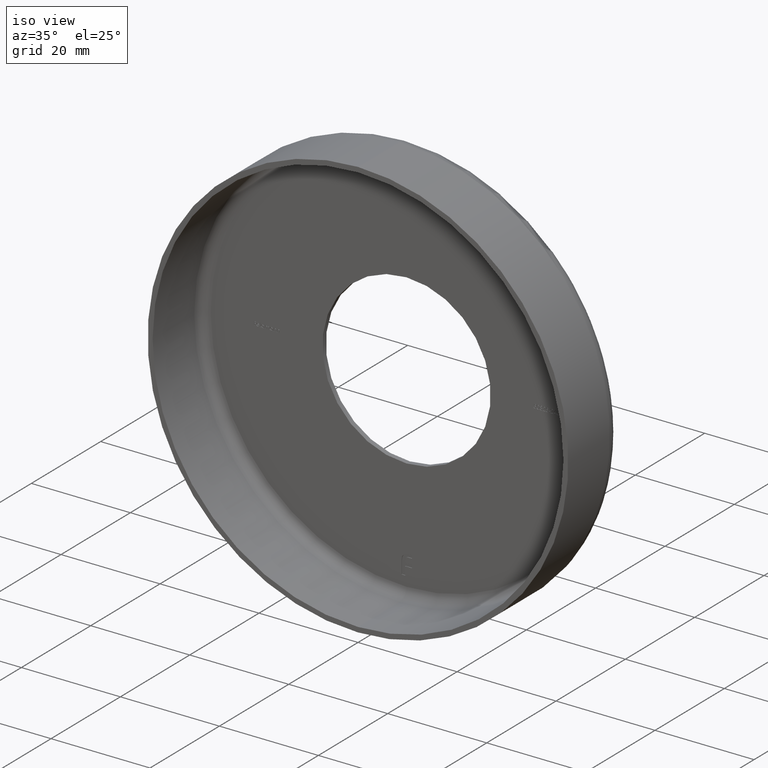
[diagram: clean part render]
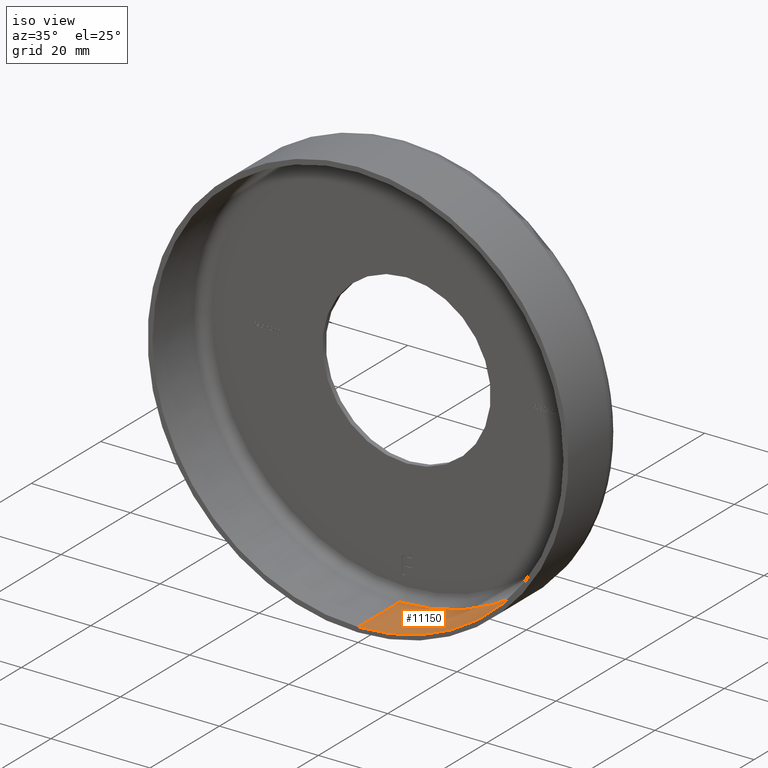
[diagram: same view with one face highlighted and labeled with its STEP entity id]
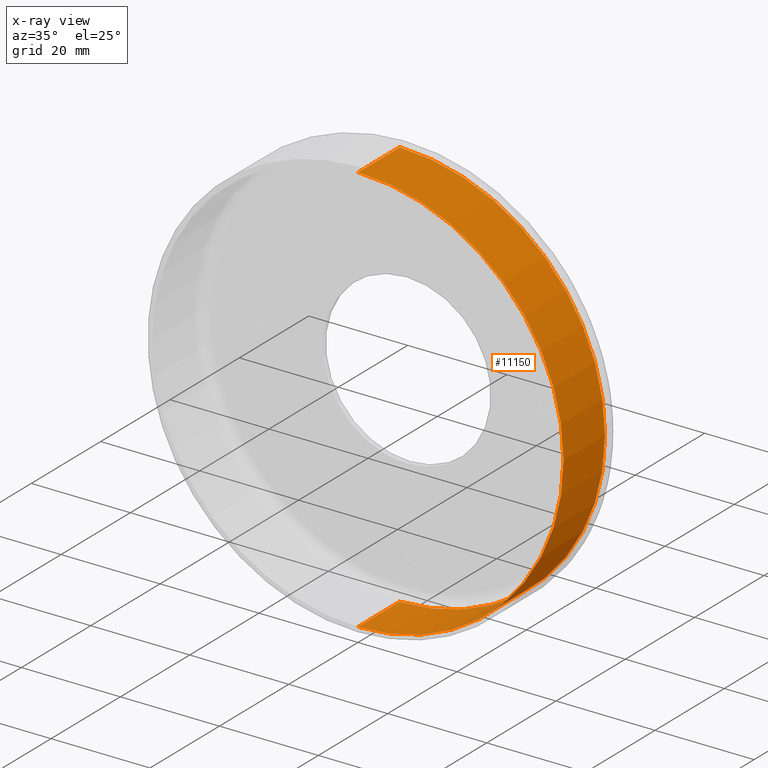
[diagram: x-ray of the same camera — body ghosted, the highlighted face saturated]
A machine part, iso view. The second image highlights one B-rep face of the part: STEP entity #11150.
The next image is the same camera in x-ray: the body ghosted, the highlighted face saturated — about 0% of this face is hidden behind the body in this view.
In plain terms, the highlighted cylindrical surface (partial cylindrical patch) has radius 41.5 mm, axis along (-0, -1, -0).
Its self-contained STEP definition (entity closure, byte-faithful):
#386 = CARTESIAN_POINT ( 'NONE',  ( 0.000000000000000000, 12.00000000000000000, 0.000000000000000000 ) ) ;
#426 = ORIENTED_EDGE ( 'NONE', *, *, #5648, .T. ) ;
#452 = CARTESIAN_POINT ( 'NONE',  ( 5.082284216461516537E-15, 0.000000000000000000, 41.50000000000000711 ) ) ;
#1738 = CYLINDRICAL_SURFACE ( 'NONE', #13786, 41.50000000000000711 ) ;
#1741 = EDGE_CURVE ( 'NONE', #13581, #5268, #7020, .T. ) ;
#1742 = DIRECTION ( 'NONE',  ( -0.000000000000000000, -1.000000000000000000, -0.000000000000000000 ) ) ;
#2593 = AXIS2_PLACEMENT_3D ( 'NONE', #6913, #1742, #5710 ) ;
#2931 = DIRECTION ( 'NONE',  ( -0.000000000000000000, -1.000000000000000000, -0.000000000000000000 ) ) ;
#3335 = CARTESIAN_POINT ( 'NONE',  ( 5.082284216461516537E-15, -1.224646799147353207E-16, 41.50000000000000711 ) ) ;
#3935 = EDGE_LOOP ( 'NONE', ( #10867, #10872, #16361, #426 ) ) ;
#4465 = DIRECTION ( 'NONE',  ( -0.000000000000000000, -1.000000000000000000, -0.000000000000000000 ) ) ;
#4695 = EDGE_CURVE ( 'NONE', #8418, #10306, #15029, .T. ) ;
#5145 = CARTESIAN_POINT ( 'NONE',  ( 5.082284216461516537E-15, 12.00000000000000000, 41.50000000000000711 ) ) ;
#5268 = VERTEX_POINT ( 'NONE', #9878 ) ;
#5648 = EDGE_CURVE ( 'NONE', #5268, #10306, #7995, .T. ) ;
#5710 = DIRECTION ( 'NONE',  ( 0.000000000000000000, 0.000000000000000000, -1.000000000000000000 ) ) ;
#6628 = DIRECTION ( 'NONE',  ( 0.000000000000000000, 0.000000000000000000, -1.000000000000000000 ) ) ;
#6913 = CARTESIAN_POINT ( 'NONE',  ( 0.000000000000000000, -1.224646799147353207E-16, 0.000000000000000000 ) ) ;
#7020 = LINE ( 'NONE', #8160, #10318 ) ;
#7446 = EDGE_CURVE ( 'NONE', #13581, #8418, #12917, .T. ) ;
#7663 = AXIS2_PLACEMENT_3D ( 'NONE', #386, #9533, #13404 ) ;
#7995 = CIRCLE ( 'NONE', #2593, 41.50000000000000711 ) ;
#8023 = VECTOR ( 'NONE', #4465, 1000.000000000000000 ) ;
#8060 = CARTESIAN_POINT ( 'NONE',  ( 0.000000000000000000, 0.000000000000000000, 0.000000000000000000 ) ) ;
#8160 = CARTESIAN_POINT ( 'NONE',  ( 0.000000000000000000, 0.000000000000000000, -41.50000000000000711 ) ) ;
#8418 = VERTEX_POINT ( 'NONE', #5145 ) ;
#9533 = DIRECTION ( 'NONE',  ( -0.000000000000000000, -1.000000000000000000, -0.000000000000000000 ) ) ;
#9878 = CARTESIAN_POINT ( 'NONE',  ( 0.000000000000000000, -1.224646799147353207E-16, -41.50000000000000711 ) ) ;
#10306 = VERTEX_POINT ( 'NONE', #3335 ) ;
#10318 = VECTOR ( 'NONE', #13572, 1000.000000000000000 ) ;
#10867 = ORIENTED_EDGE ( 'NONE', *, *, #4695, .F. ) ;
#10872 = ORIENTED_EDGE ( 'NONE', *, *, #7446, .F. ) ;
#11150 = ADVANCED_FACE ( 'NONE', ( #13299 ), #1738, .F. ) ;
#12917 = CIRCLE ( 'NONE', #7663, 41.50000000000000711 ) ;
#13299 = FACE_OUTER_BOUND ( 'NONE', #3935, .T. ) ;
#13404 = DIRECTION ( 'NONE',  ( 0.000000000000000000, 0.000000000000000000, -1.000000000000000000 ) ) ;
#13572 = DIRECTION ( 'NONE',  ( -0.000000000000000000, -1.000000000000000000, -0.000000000000000000 ) ) ;
#13581 = VERTEX_POINT ( 'NONE', #16691 ) ;
#13786 = AXIS2_PLACEMENT_3D ( 'NONE', #8060, #2931, #6628 ) ;
#15029 = LINE ( 'NONE', #452, #8023 ) ;
#16361 = ORIENTED_EDGE ( 'NONE', *, *, #1741, .T. ) ;
#16691 = CARTESIAN_POINT ( 'NONE',  ( 0.000000000000000000, 12.00000000000000000, -41.50000000000000711 ) ) ;